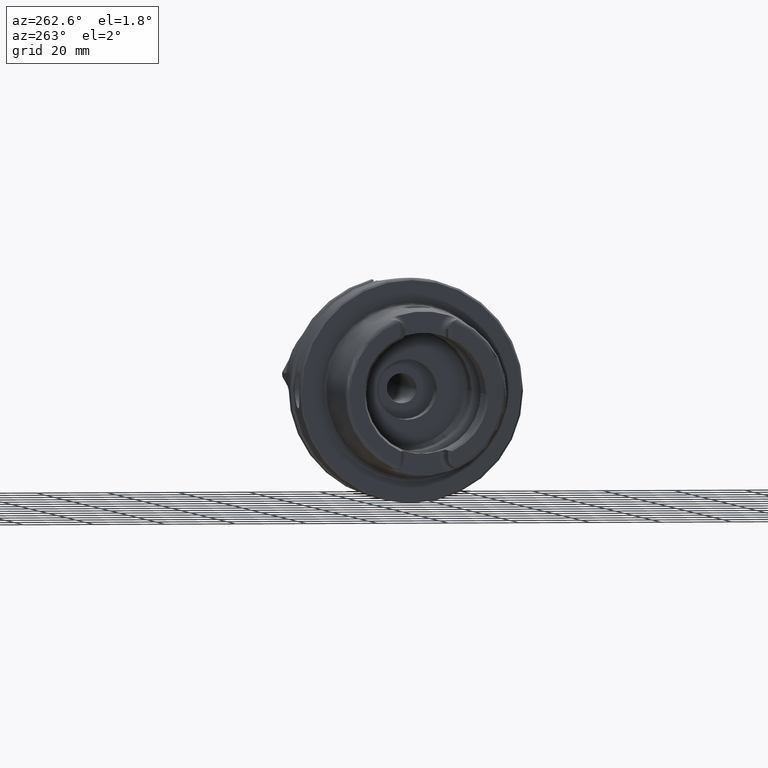
[diagram: clean part render]
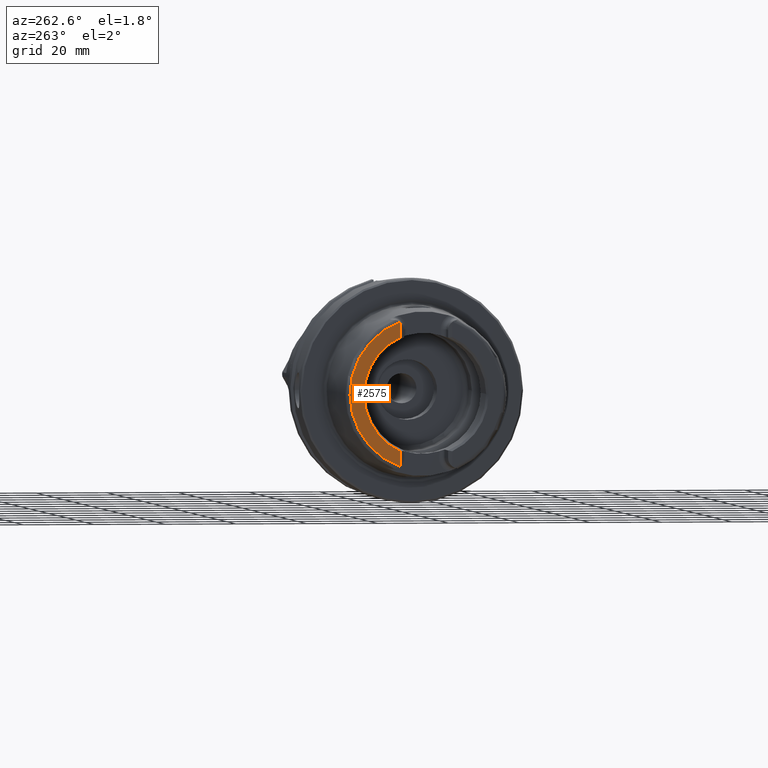
[diagram: same view with one face highlighted and labeled with its STEP entity id]
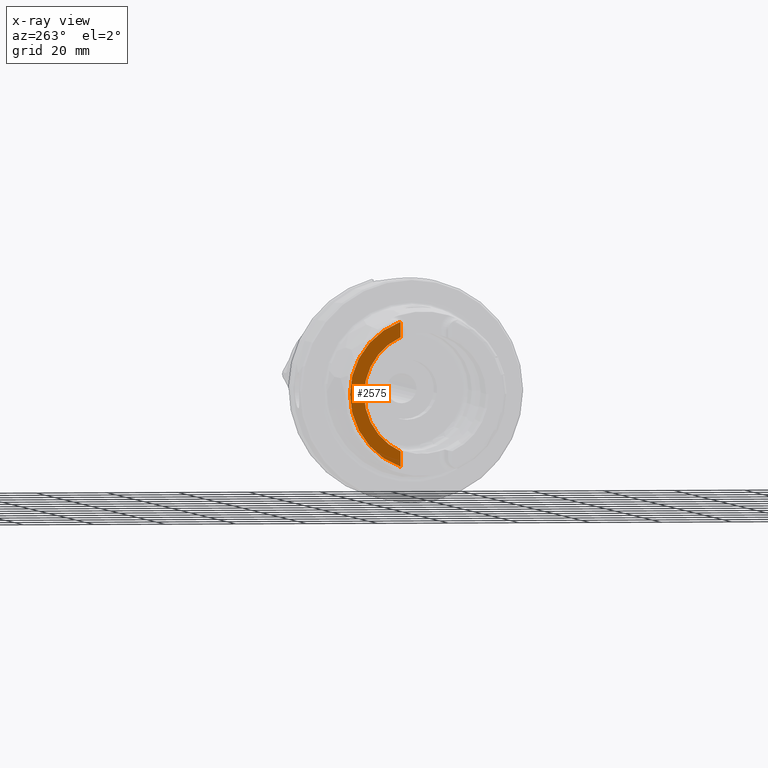
[diagram: x-ray of the same camera — body ghosted, the highlighted face saturated]
A machine part, auxiliary view. The second image highlights one B-rep face of the part: STEP entity #2575.
The next image is the same camera in x-ray: the body ghosted, the highlighted face saturated — about 0% of this face is hidden behind the body in this view.
In plain terms, the highlighted planar face has unit normal (-1, -0, -0).
Its self-contained STEP definition (entity closure, byte-faithful):
#235=PLANE('',#2910);
#378=FACE_OUTER_BOUND('',#534,.T.);
#534=EDGE_LOOP('',(#2203,#2204,#2205,#2206,#2207,#2208));
#621=LINE('',#3965,#757);
#631=LINE('',#4058,#767);
#757=VECTOR('',#3160,10.);
#767=VECTOR('',#3198,10.);
#899=CIRCLE('',#2758,2.88);
#905=CIRCLE('',#2773,2.88);
#973=CIRCLE('',#2909,17.5773502691896);
#974=CIRCLE('',#2911,21.5760400159857);
#1069=VERTEX_POINT('',#3958);
#1072=VERTEX_POINT('',#3963);
#1075=VERTEX_POINT('',#3973);
#1090=VERTEX_POINT('',#4055);
#1091=VERTEX_POINT('',#4057);
#1096=VERTEX_POINT('',#4076);
#1338=EDGE_CURVE('',#1072,#1069,#621,.T.);
#1342=EDGE_CURVE('',#1075,#1069,#899,.T.);
#1360=EDGE_CURVE('',#1090,#1091,#631,.T.);
#1367=EDGE_CURVE('',#1090,#1096,#905,.T.);
#1562=EDGE_CURVE('',#1091,#1072,#973,.T.);
#1563=EDGE_CURVE('',#1075,#1096,#974,.T.);
#2203=ORIENTED_EDGE('',*,*,#1338,.F.);
#2204=ORIENTED_EDGE('',*,*,#1562,.F.);
#2205=ORIENTED_EDGE('',*,*,#1360,.F.);
#2206=ORIENTED_EDGE('',*,*,#1367,.T.);
#2207=ORIENTED_EDGE('',*,*,#1563,.F.);
#2208=ORIENTED_EDGE('',*,*,#1342,.T.);
#2575=ADVANCED_FACE('',(#378),#235,.T.);
#2758=AXIS2_PLACEMENT_3D('',#3974,#3168,#3169);
#2773=AXIS2_PLACEMENT_3D('',#4089,#3207,#3208);
#2909=AXIS2_PLACEMENT_3D('',#5205,#3542,#3543);
#2910=AXIS2_PLACEMENT_3D('',#5206,#3544,#3545);
#2911=AXIS2_PLACEMENT_3D('',#5207,#3546,#3547);
#3160=DIRECTION('',(0.,0.,-1.));
#3168=DIRECTION('center_axis',(-1.,0.,0.));
#3169=DIRECTION('ref_axis',(0.,-0.453346760926793,0.891334232685576));
#3198=DIRECTION('',(0.,1.58830189502884E-16,-1.));
#3207=DIRECTION('center_axis',(-1.,0.,0.));
#3208=DIRECTION('ref_axis',(0.,1.,0.));
#3542=DIRECTION('center_axis',(-1.,0.,0.));
#3543=DIRECTION('ref_axis',(0.,-1.,0.));
#3544=DIRECTION('center_axis',(-1.,0.,0.));
#3545=DIRECTION('ref_axis',(0.,0.,1.));
#3546=DIRECTION('center_axis',(1.,0.,0.));
#3547=DIRECTION('ref_axis',(0.,0.,-1.));
#3958=CARTESIAN_POINT('',(-32.,7.27,-20.1717424229271));
#3963=CARTESIAN_POINT('',(-32.,7.27,-16.003447831195));
#3965=CARTESIAN_POINT('',(-32.,7.27,-5.5));
#3973=CARTESIAN_POINT('',(-32.,7.39118810947246,-20.2705658801576));
#3974=CARTESIAN_POINT('Origin',(-32.,9.15,-17.99));
#4055=CARTESIAN_POINT('',(-32.,7.27,20.1717424229271));
#4057=CARTESIAN_POINT('',(-32.,7.27,16.003447831195));
#4058=CARTESIAN_POINT('',(-32.,7.27,8.995));
#4076=CARTESIAN_POINT('',(-32.,7.39118810947246,20.2705658801576));
#4089=CARTESIAN_POINT('Origin',(-32.,9.15,17.99));
#5205=CARTESIAN_POINT('Origin',(-32.,0.,0.));
#5206=CARTESIAN_POINT('Origin',(-32.,21.5760400159857,0.));
#5207=CARTESIAN_POINT('Origin',(-32.,0.,0.));